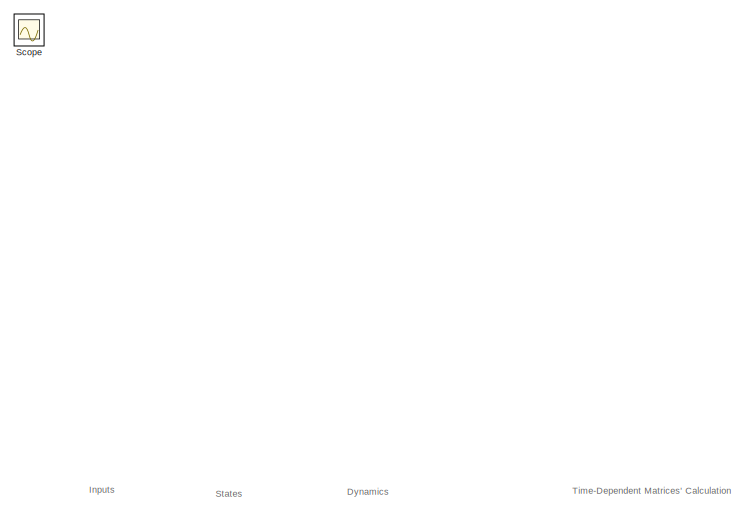
[diagram: root canvas - part 1/2, top left region]
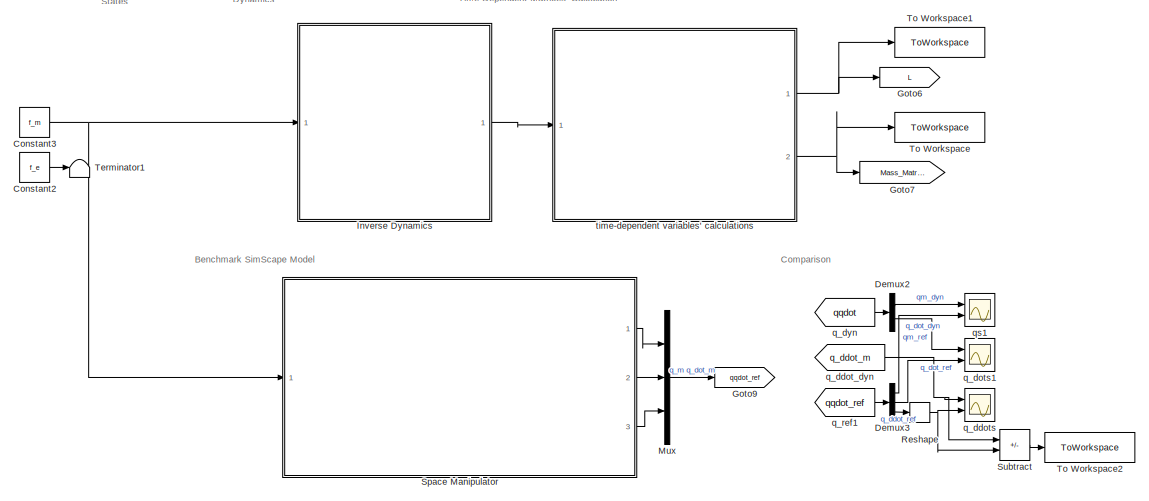
[diagram: root canvas - part 2/2, full width, bottom band]
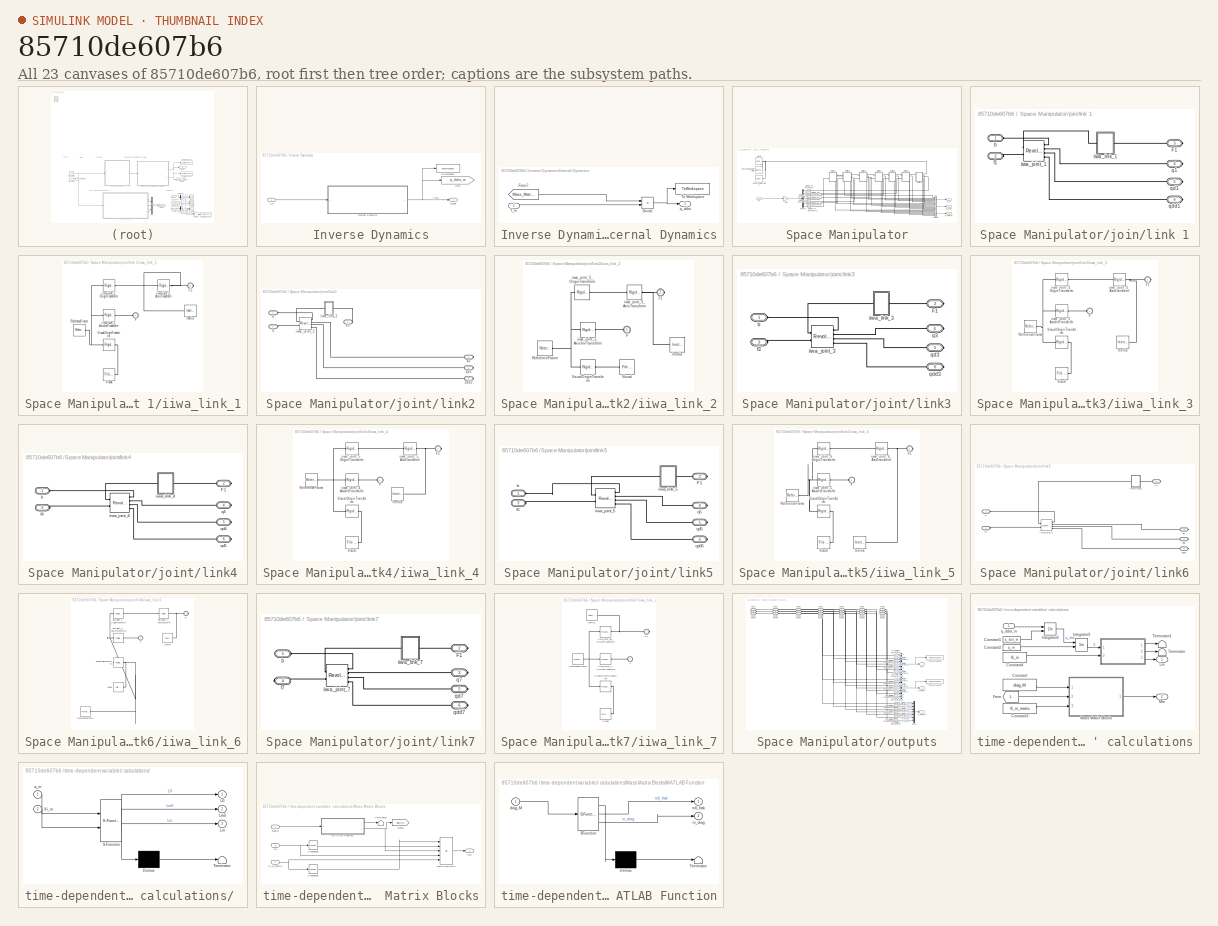
[diagram: thumbnail index - all 23 canvases of the model, root first then tree order]
MODEL slx_85710de607b6
KIND model
CONFIG AbsTol = auto
CONFIG EnableMultiTasking = off
CONFIG FixedStep = 0.01
CONFIG InitFcn = % ************** Initiate forces\n% f0=[0;0;0;0;0;0];\n% f0=[0;0;0;0;0;0;0];\n%f_0=[0;0;0];\n%f_m=[0;0;0;0;0;0;0];\n%f_e=[0;0;0;0;0;0];\n% ************** Initiate states\n%q_m=[0;0];\n%q_dot_m=[0;0.3;0;0;0;0;0];\n%P=[0;0;0];\n%V_I0=[0;0;0];\n% ************** Load main\n%run(Main.m)
CONFIG MaxStep = auto
CONFIG MinStep = auto
CONFIG RelTol = 1e-3
CONFIG SampleTimeConstraint = Unconstrained
CONFIG SolverName = ode4
CONFIG StartTime = 0.0
CONFIG StopTime = 0.01
BLOCK [Constant] Constant2
  Value = f_e
  VectorParams1D = off
BLOCK [Constant] Constant3
  Value = f_m
  VectorParams1D = off
BLOCK [Demux] Demux2
  Outputs = 2
  Ports = [1, 2]
BLOCK [Demux] Demux3
  Outputs = 3
  Ports = [1, 3]
BLOCK [Goto] Goto6
  GotoTag = L
  TagVisibility = global
BLOCK [Goto] Goto7
  GotoTag = Mass_Matrix
  TagVisibility = global
BLOCK [Goto] Goto9
  GotoTag = qqdot_ref
  TagVisibility = global
BLOCK [SubSystem] Inverse Dynamics
  NameLocation = right
  Ports = [1, 1]
  RequestExecContextInheritance = off
BLOCK [Goto] Inverse Dynamics/Goto
  GotoTag = q_ddot_m
  TagVisibility = global
BLOCK [SubSystem] Inverse Dynamics/Internal Dynamics
  Ports = [1, 1]
  RequestExecContextInheritance = off
BLOCK [Product] Inverse Dynamics/Internal Dynamics/Divide
  Inputs = /*
  Multiplication = Matrix(*)
  Ports = [2, 1]
BLOCK [From] Inverse Dynamics/Internal Dynamics/From7
  GotoTag = Mass_Matrix
  TagVisibility = global
BLOCK [ToWorkspace] Inverse Dynamics/Internal Dynamics/To Workspace
  FixptAsFi = on
  MaxDataPoints = inf
  Ports = [1]
  SampleTime = -1
  SaveFormat = Timeseries
  VariableName = qddot
BLOCK [Inport] Inverse Dynamics/Internal Dynamics/f_m
BLOCK [Outport] Inverse Dynamics/Internal Dynamics/q_ddot
BLOCK [ToWorkspace] Inverse Dynamics/To Workspace
  FixptAsFi = on
  MaxDataPoints = inf
  Ports = [1]
  SampleTime = -1
  SaveFormat = Timeseries
  VariableName = q_ddot_m
BLOCK [Inport] Inverse Dynamics/f_m
BLOCK [Outport] Inverse Dynamics/q_ddot
BLOCK [Mux] Mux
  DisplayOption = bar
  Inputs = 3
  Ports = [3, 1]
BLOCK [Reshape] Reshape
  OutputDimensionality = Column vector (2-D)
  Ports = [1, 1]
BLOCK [Scope] Scope
  Floating = off
  IOType = viewer
  NumInputPorts = 1
  Ports = []
  ScopeSpecificationString = Simulink.scopes.TimeScopeBlockCfg('CurrentConfiguration', extmgr.ConfigurationSet(extmgr.Configuration('Core','General UI',true),extmgr.Configuration('Core','Source UI',true),extmgr.Configuration('Sources','WiredSimulink',true),extmgr.Configuration('Visuals','Time Domain',true,'SerializedDisplays',{struct('MinYLimReal','-10','MaxYLimReal','10','YLabelReal','','MinYLimMag','0','MaxYLimMag','10','Le...<+777ch>
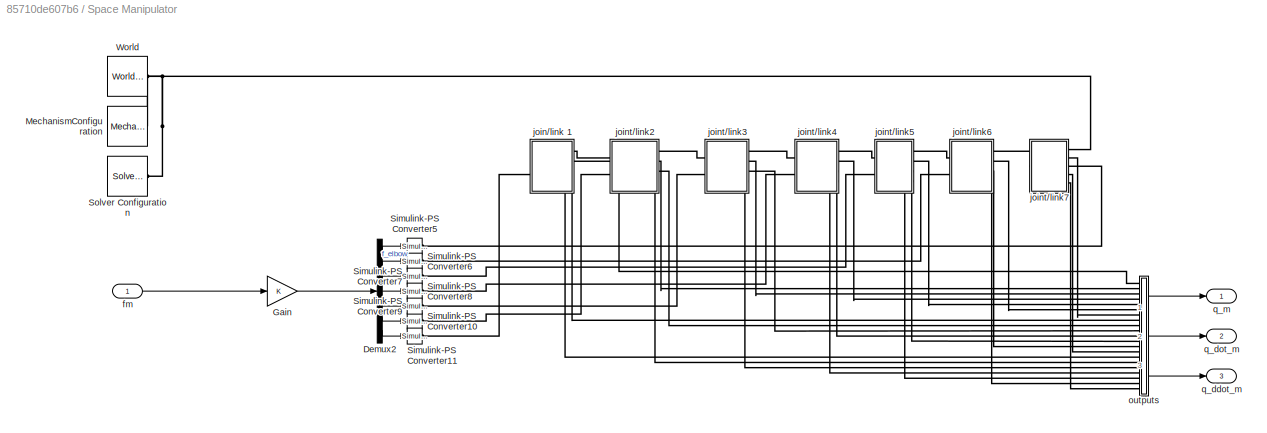
BLOCK [SubSystem] Space Manipulator
  Ports = [1, 3]
  RequestExecContextInheritance = off
BLOCK [Demux] Space Manipulator/Demux2
  Outputs = 7
  Ports = [1, 7]
BLOCK [Gain] Space Manipulator/Gain
BLOCK [Reference] Space Manipulator/MechanismConfiguration  REF=sm_lib/Utilities/Mechanism
Configuration
  Ports = [0, 0, 0, 0, 0, 0, 1]
  SourceBlock = sm_lib/Utilities/Mechanism\nConfiguration
  SourceProductBaseCode = MS
  SourceType = Mechanism\nConfiguration
BLOCK [Reference] Space Manipulator/Simulink-PS Converter10  REF=nesl_utility/Simulink-PS
Converter
  Ports = [1, 0, 0, 0, 0, 0, 1]
  SourceBlock = nesl_utility/Simulink-PS\nConverter
  SourceProductBaseCode = PW,SS
  SourceType = Simulink-PS\nConverter
BLOCK [Reference] Space Manipulator/Simulink-PS Converter11  REF=nesl_utility/Simulink-PS
Converter
  Ports = [1, 0, 0, 0, 0, 0, 1]
  SourceBlock = nesl_utility/Simulink-PS\nConverter
  SourceProductBaseCode = PW,SS
  SourceType = Simulink-PS\nConverter
BLOCK [Reference] Space Manipulator/Simulink-PS Converter5  REF=nesl_utility/Simulink-PS
Converter
  Ports = [1, 0, 0, 0, 0, 0, 1]
  SourceBlock = nesl_utility/Simulink-PS\nConverter
  SourceProductBaseCode = PW,SS
  SourceType = Simulink-PS\nConverter
BLOCK [Reference] Space Manipulator/Simulink-PS Converter6  REF=nesl_utility/Simulink-PS
Converter
  Ports = [1, 0, 0, 0, 0, 0, 1]
  SourceBlock = nesl_utility/Simulink-PS\nConverter
  SourceProductBaseCode = PW,SS
  SourceType = Simulink-PS\nConverter
BLOCK [Reference] Space Manipulator/Simulink-PS Converter7  REF=nesl_utility/Simulink-PS
Converter
  Ports = [1, 0, 0, 0, 0, 0, 1]
  SourceBlock = nesl_utility/Simulink-PS\nConverter
  SourceProductBaseCode = PW,SS
  SourceType = Simulink-PS\nConverter
BLOCK [Reference] Space Manipulator/Simulink-PS Converter8  REF=nesl_utility/Simulink-PS
Converter
  Ports = [1, 0, 0, 0, 0, 0, 1]
  SourceBlock = nesl_utility/Simulink-PS\nConverter
  SourceProductBaseCode = PW,SS
  SourceType = Simulink-PS\nConverter
BLOCK [Reference] Space Manipulator/Simulink-PS Converter9  REF=nesl_utility/Simulink-PS
Converter
  Ports = [1, 0, 0, 0, 0, 0, 1]
  SourceBlock = nesl_utility/Simulink-PS\nConverter
  SourceProductBaseCode = PW,SS
  SourceType = Simulink-PS\nConverter
BLOCK [Reference] Space Manipulator/Solver Configuration  REF=nesl_utility/Solver
Configuration
  Ports = [0, 0, 0, 0, 0, 0, 1]
  SourceBlock = nesl_utility/Solver\nConfiguration
  SourceProductBaseCode = PW,SS
  SourceType = Solver\nConfiguration
BLOCK [Reference] Space Manipulator/World  REF=sm_lib/Frames and
Transforms/World Frame
  Ports = [0, 0, 0, 0, 0, 0, 1]
  SourceBlock = sm_lib/Frames and\nTransforms/World Frame
  SourceProductBaseCode = MS
  SourceType = World Frame
BLOCK [Inport] Space Manipulator/fm
BLOCK [SubSystem] Space Manipulator/join//link 1
  Ports = [0, 0, 0, 0, 0, 2, 4]
  RequestExecContextInheritance = off
BLOCK [PMIOPort] Space Manipulator/join//link 1/F1
  Port = 3
  Side = Right
BLOCK [PMIOPort] Space Manipulator/join//link 1/b
  Side = Left
BLOCK [PMIOPort] Space Manipulator/join//link 1/f1
  Port = 2
  Side = Left
BLOCK [Reference] Space Manipulator/join//link 1/iiwa_joint_1  REF=sm_lib/Joints/Revolute Joint
  Ports = [0, 0, 0, 0, 0, 2, 4]
  SourceBlock = sm_lib/Joints/Revolute Joint
  SourceProductBaseCode = MS
  SourceType = Revolute Joint
BLOCK [SubSystem] Space Manipulator/join//link 1/iiwa_link_1
  Ports = [0, 0, 0, 0, 0, 1, 1]
  RequestExecContextInheritance = off
BLOCK [PMIOPort] Space Manipulator/join//link 1/iiwa_link_1/F
  Side = Left
BLOCK [PMIOPort] Space Manipulator/join//link 1/iiwa_link_1/F1
  Port = 2
  Side = Right
BLOCK [Reference] Space Manipulator/join//link 1/iiwa_link_1/Inertia  REF=sm_lib/Body Elements/Inertia
  NameLocation = top
  Ports = [0, 0, 0, 0, 0, 0, 1]
  SourceBlock = sm_lib/Body Elements/Inertia
  SourceProductBaseCode = MS
  SourceType = Inertia
BLOCK [Reference] Space Manipulator/join//link 1/iiwa_link_1/ReferenceFrame  REF=sm_lib/Frames and
Transforms/Reference
Frame
  Ports = [0, 0, 0, 0, 0, 0, 1]
  SourceBlock = sm_lib/Frames and\nTransforms/Reference\nFrame
  SourceProductBaseCode = MS
  SourceType = Reference\nFrame
BLOCK [Reference] Space Manipulator/join//link 1/iiwa_link_1/Visual  REF=sm_lib/Body Elements/File Solid
  Ports = [0, 0, 0, 0, 0, 0, 1]
  SourceBlock = sm_lib/Body Elements/File Solid
  SourceProductBaseCode = MS
  SourceType = File Solid
BLOCK [Reference] Space Manipulator/join//link 1/iiwa_link_1/VisualOriginTransform  REF=sm_lib/Frames and
Transforms/Rigid
Transform
  Ports = [0, 0, 0, 0, 0, 1, 1]
  SourceBlock = sm_lib/Frames and\nTransforms/Rigid\nTransform
  SourceProductBaseCode = MS
  SourceType = Rigid\nTransform
BLOCK [Reference] Space Manipulator/join//link 1/iiwa_link_1/iiwa_joint_1_AxisInvTransform  REF=sm_lib/Frames and
Transforms/Rigid
Transform
  Ports = [0, 0, 0, 0, 0, 1, 1]
  SourceBlock = sm_lib/Frames and\nTransforms/Rigid\nTransform
  SourceProductBaseCode = MS
  SourceType = Rigid\nTransform
BLOCK [Reference] Space Manipulator/join//link 1/iiwa_link_1/iiwa_joint_2_AxisTransform  REF=sm_lib/Frames and
Transforms/Rigid
Transform
  Ports = [0, 0, 0, 0, 0, 1, 1]
  SourceBlock = sm_lib/Frames and\nTransforms/Rigid\nTransform
  SourceProductBaseCode = MS
  SourceType = Rigid\nTransform
BLOCK [Reference] Space Manipulator/join//link 1/iiwa_link_1/iiwa_joint_2_OriginTransform  REF=sm_lib/Frames and
Transforms/Rigid
Transform
  Ports = [0, 0, 0, 0, 0, 1, 1]
  SourceBlock = sm_lib/Frames and\nTransforms/Rigid\nTransform
  SourceProductBaseCode = MS
  SourceType = Rigid\nTransform
BLOCK [PMIOPort] Space Manipulator/join//link 1/q1
  Port = 4
  Side = Right
BLOCK [PMIOPort] Space Manipulator/join//link 1/qd1
  Port = 5
  Side = Right
BLOCK [PMIOPort] Space Manipulator/join//link 1/qdd1
  Port = 6
  Side = Right
BLOCK [SubSystem] Space Manipulator/joint//link2
  Ports = [0, 0, 0, 0, 0, 2, 4]
  RequestExecContextInheritance = off
BLOCK [PMIOPort] Space Manipulator/joint//link2/F1
  Port = 2
  Side = Right
BLOCK [PMIOPort] Space Manipulator/joint//link2/b
  Side = Left
BLOCK [PMIOPort] Space Manipulator/joint//link2/f2
  Port = 3
  Side = Left
BLOCK [Reference] Space Manipulator/joint//link2/iiwa_joint_2  REF=sm_lib/Joints/Revolute Joint
  Ports = [0, 0, 0, 0, 0, 2, 4]
  SourceBlock = sm_lib/Joints/Revolute Joint
  SourceProductBaseCode = MS
  SourceType = Revolute Joint
BLOCK [SubSystem] Space Manipulator/joint//link2/iiwa_link_2
  Ports = [0, 0, 0, 0, 0, 1, 1]
  RequestExecContextInheritance = off
BLOCK [PMIOPort] Space Manipulator/joint//link2/iiwa_link_2/F
  Side = Left
BLOCK [PMIOPort] Space Manipulator/joint//link2/iiwa_link_2/F1
  Port = 2
  Side = Right
BLOCK [Reference] Space Manipulator/joint//link2/iiwa_link_2/Inertia  REF=sm_lib/Body Elements/Inertia
  NameLocation = top
  Ports = [0, 0, 0, 0, 0, 0, 1]
  SourceBlock = sm_lib/Body Elements/Inertia
  SourceProductBaseCode = MS
  SourceType = Inertia
BLOCK [Reference] Space Manipulator/joint//link2/iiwa_link_2/ReferenceFrame  REF=sm_lib/Frames and
Transforms/Reference
Frame
  Ports = [0, 0, 0, 0, 0, 0, 1]
  SourceBlock = sm_lib/Frames and\nTransforms/Reference\nFrame
  SourceProductBaseCode = MS
  SourceType = Reference\nFrame
BLOCK [Reference] Space Manipulator/joint//link2/iiwa_link_2/Visual  REF=sm_lib/Body Elements/File Solid
  NameLocation = top
  Ports = [0, 0, 0, 0, 0, 0, 1]
  SourceBlock = sm_lib/Body Elements/File Solid
  SourceProductBaseCode = MS
  SourceType = File Solid
BLOCK [Reference] Space Manipulator/joint//link2/iiwa_link_2/VisualOriginTransform  REF=sm_lib/Frames and
Transforms/Rigid
Transform
  Ports = [0, 0, 0, 0, 0, 1, 1]
  SourceBlock = sm_lib/Frames and\nTransforms/Rigid\nTransform
  SourceProductBaseCode = MS
  SourceType = Rigid\nTransform
BLOCK [Reference] Space Manipulator/joint//link2/iiwa_link_2/iiwa_joint_2_AxisInvTransform  REF=sm_lib/Frames and
Transforms/Rigid
Transform
  Ports = [0, 0, 0, 0, 0, 1, 1]
  SourceBlock = sm_lib/Frames and\nTransforms/Rigid\nTransform
  SourceProductBaseCode = MS
  SourceType = Rigid\nTransform
BLOCK [Reference] Space Manipulator/joint//link2/iiwa_link_2/iiwa_joint_3_AxisTransform  REF=sm_lib/Frames and
Transforms/Rigid
Transform
  Ports = [0, 0, 0, 0, 0, 1, 1]
  SourceBlock = sm_lib/Frames and\nTransforms/Rigid\nTransform
  SourceProductBaseCode = MS
  SourceType = Rigid\nTransform
BLOCK [Reference] Space Manipulator/joint//link2/iiwa_link_2/iiwa_joint_3_OriginTransform  REF=sm_lib/Frames and
Transforms/Rigid
Transform
  Ports = [0, 0, 0, 0, 0, 1, 1]
  SourceBlock = sm_lib/Frames and\nTransforms/Rigid\nTransform
  SourceProductBaseCode = MS
  SourceType = Rigid\nTransform
BLOCK [PMIOPort] Space Manipulator/joint//link2/q2
  Port = 4
  Side = Right
BLOCK [PMIOPort] Space Manipulator/joint//link2/qd2
  Port = 5
  Side = Right
BLOCK [PMIOPort] Space Manipulator/joint//link2/qdd2
  Port = 6
  Side = Right
BLOCK [SubSystem] Space Manipulator/joint//link3
  Ports = [0, 0, 0, 0, 0, 2, 4]
  RequestExecContextInheritance = off
BLOCK [PMIOPort] Space Manipulator/joint//link3/F1
  Port = 2
  Side = Right
BLOCK [PMIOPort] Space Manipulator/joint//link3/b
  Side = Left
BLOCK [PMIOPort] Space Manipulator/joint//link3/f3
  Port = 3
  Side = Left
BLOCK [Reference] Space Manipulator/joint//link3/iiwa_joint_3  REF=sm_lib/Joints/Revolute Joint
  Ports = [0, 0, 0, 0, 0, 2, 4]
  SourceBlock = sm_lib/Joints/Revolute Joint
  SourceProductBaseCode = MS
  SourceType = Revolute Joint
BLOCK [SubSystem] Space Manipulator/joint//link3/iiwa_link_3
  Ports = [0, 0, 0, 0, 0, 1, 1]
  RequestExecContextInheritance = off
BLOCK [PMIOPort] Space Manipulator/joint//link3/iiwa_link_3/F
  Side = Left
BLOCK [PMIOPort] Space Manipulator/joint//link3/iiwa_link_3/F1
  Port = 2
  Side = Right
BLOCK [Reference] Space Manipulator/joint//link3/iiwa_link_3/Inertia  REF=sm_lib/Body Elements/Inertia
  Ports = [0, 0, 0, 0, 0, 0, 1]
  SourceBlock = sm_lib/Body Elements/Inertia
  SourceProductBaseCode = MS
  SourceType = Inertia
BLOCK [Reference] Space Manipulator/joint//link3/iiwa_link_3/ReferenceFrame  REF=sm_lib/Frames and
Transforms/Reference
Frame
  Ports = [0, 0, 0, 0, 0, 0, 1]
  SourceBlock = sm_lib/Frames and\nTransforms/Reference\nFrame
  SourceProductBaseCode = MS
  SourceType = Reference\nFrame
BLOCK [Reference] Space Manipulator/joint//link3/iiwa_link_3/Visual  REF=sm_lib/Body Elements/File Solid
  Ports = [0, 0, 0, 0, 0, 0, 1]
  SourceBlock = sm_lib/Body Elements/File Solid
  SourceProductBaseCode = MS
  SourceType = File Solid
BLOCK [Reference] Space Manipulator/joint//link3/iiwa_link_3/VisualOriginTransform  REF=sm_lib/Frames and
Transforms/Rigid
Transform
  Ports = [0, 0, 0, 0, 0, 1, 1]
  SourceBlock = sm_lib/Frames and\nTransforms/Rigid\nTransform
  SourceProductBaseCode = MS
  SourceType = Rigid\nTransform
BLOCK [Reference] Space Manipulator/joint//link3/iiwa_link_3/iiwa_joint_3_AxisInvTransform  REF=sm_lib/Frames and
Transforms/Rigid
Transform
  Ports = [0, 0, 0, 0, 0, 1, 1]
  SourceBlock = sm_lib/Frames and\nTransforms/Rigid\nTransform
  SourceProductBaseCode = MS
  SourceType = Rigid\nTransform
BLOCK [Reference] Space Manipulator/joint//link3/iiwa_link_3/iiwa_joint_4_AxisTransform  REF=sm_lib/Frames and
Transforms/Rigid
Transform
  Ports = [0, 0, 0, 0, 0, 1, 1]
  SourceBlock = sm_lib/Frames and\nTransforms/Rigid\nTransform
  SourceProductBaseCode = MS
  SourceType = Rigid\nTransform
BLOCK [Reference] Space Manipulator/joint//link3/iiwa_link_3/iiwa_joint_4_OriginTransform  REF=sm_lib/Frames and
Transforms/Rigid
Transform
  Ports = [0, 0, 0, 0, 0, 1, 1]
  SourceBlock = sm_lib/Frames and\nTransforms/Rigid\nTransform
  SourceProductBaseCode = MS
  SourceType = Rigid\nTransform
BLOCK [PMIOPort] Space Manipulator/joint//link3/q3
  Port = 4
  Side = Right
BLOCK [PMIOPort] Space Manipulator/joint//link3/qd3
  Port = 5
  Side = Right
BLOCK [PMIOPort] Space Manipulator/joint//link3/qdd3
  Port = 6
  Side = Right
BLOCK [SubSystem] Space Manipulator/joint//link4
  Ports = [0, 0, 0, 0, 0, 2, 4]
  RequestExecContextInheritance = off
BLOCK [PMIOPort] Space Manipulator/joint//link4/F1
  Port = 2
  Side = Right
BLOCK [PMIOPort] Space Manipulator/joint//link4/b
  Side = Left
BLOCK [PMIOPort] Space Manipulator/joint//link4/f4
  Port = 3
  Side = Left
BLOCK [Reference] Space Manipulator/joint//link4/iiwa_joint_4  REF=sm_lib/Joints/Revolute Joint
  Ports = [0, 0, 0, 0, 0, 2, 4]
  SourceBlock = sm_lib/Joints/Revolute Joint
  SourceProductBaseCode = MS
  SourceType = Revolute Joint
BLOCK [SubSystem] Space Manipulator/joint//link4/iiwa_link_4
  Ports = [0, 0, 0, 0, 0, 1, 1]
  RequestExecContextInheritance = off
BLOCK [PMIOPort] Space Manipulator/joint//link4/iiwa_link_4/F
  Side = Left
BLOCK [PMIOPort] Space Manipulator/joint//link4/iiwa_link_4/F1
  Port = 2
  Side = Right
BLOCK [Reference] Space Manipulator/joint//link4/iiwa_link_4/Inertia  REF=sm_lib/Body Elements/Inertia
  Ports = [0, 0, 0, 0, 0, 0, 1]
  SourceBlock = sm_lib/Body Elements/Inertia
  SourceProductBaseCode = MS
  SourceType = Inertia
BLOCK [Reference] Space Manipulator/joint//link4/iiwa_link_4/ReferenceFrame  REF=sm_lib/Frames and
Transforms/Reference
Frame
  Ports = [0, 0, 0, 0, 0, 0, 1]
  SourceBlock = sm_lib/Frames and\nTransforms/Reference\nFrame
  SourceProductBaseCode = MS
  SourceType = Reference\nFrame
BLOCK [Reference] Space Manipulator/joint//link4/iiwa_link_4/Visual  REF=sm_lib/Body Elements/File Solid
  Ports = [0, 0, 0, 0, 0, 0, 1]
  SourceBlock = sm_lib/Body Elements/File Solid
  SourceProductBaseCode = MS
  SourceType = File Solid
BLOCK [Reference] Space Manipulator/joint//link4/iiwa_link_4/VisualOriginTransform  REF=sm_lib/Frames and
Transforms/Rigid
Transform
  Ports = [0, 0, 0, 0, 0, 1, 1]
  SourceBlock = sm_lib/Frames and\nTransforms/Rigid\nTransform
  SourceProductBaseCode = MS
  SourceType = Rigid\nTransform
BLOCK [Reference] Space Manipulator/joint//link4/iiwa_link_4/iiwa_joint_4_AxisInvTransform  REF=sm_lib/Frames and
Transforms/Rigid
Transform
  Ports = [0, 0, 0, 0, 0, 1, 1]
  SourceBlock = sm_lib/Frames and\nTransforms/Rigid\nTransform
  SourceProductBaseCode = MS
  SourceType = Rigid\nTransform
BLOCK [Reference] Space Manipulator/joint//link4/iiwa_link_4/iiwa_joint_5_AxisTransform  REF=sm_lib/Frames and
Transforms/Rigid
Transform
  Ports = [0, 0, 0, 0, 0, 1, 1]
  SourceBlock = sm_lib/Frames and\nTransforms/Rigid\nTransform
  SourceProductBaseCode = MS
  SourceType = Rigid\nTransform
BLOCK [Reference] Space Manipulator/joint//link4/iiwa_link_4/iiwa_joint_5_OriginTransform  REF=sm_lib/Frames and
Transforms/Rigid
Transform
  Ports = [0, 0, 0, 0, 0, 1, 1]
  SourceBlock = sm_lib/Frames and\nTransforms/Rigid\nTransform
  SourceProductBaseCode = MS
  SourceType = Rigid\nTransform
BLOCK [PMIOPort] Space Manipulator/joint//link4/q4
  Port = 4
  Side = Right
BLOCK [PMIOPort] Space Manipulator/joint//link4/qd4
  Port = 5
  Side = Right
BLOCK [PMIOPort] Space Manipulator/joint//link4/qd5
  Port = 6
  Side = Right
BLOCK [SubSystem] Space Manipulator/joint//link5
  Ports = [0, 0, 0, 0, 0, 2, 4]
  RequestExecContextInheritance = off
BLOCK [PMIOPort] Space Manipulator/joint//link5/F1
  Port = 2
  Side = Right
BLOCK [PMIOPort] Space Manipulator/joint//link5/b
  Side = Left
BLOCK [PMIOPort] Space Manipulator/joint//link5/f5
  Port = 3
  Side = Left
BLOCK [Reference] Space Manipulator/joint//link5/iiwa_joint_5  REF=sm_lib/Joints/Revolute Joint
  Ports = [0, 0, 0, 0, 0, 2, 4]
  SourceBlock = sm_lib/Joints/Revolute Joint
  SourceProductBaseCode = MS
  SourceType = Revolute Joint
BLOCK [SubSystem] Space Manipulator/joint//link5/iiwa_link_5
  Ports = [0, 0, 0, 0, 0, 1, 1]
  RequestExecContextInheritance = off
BLOCK [PMIOPort] Space Manipulator/joint//link5/iiwa_link_5/F
  Side = Left
BLOCK [PMIOPort] Space Manipulator/joint//link5/iiwa_link_5/F1
  Port = 2
  Side = Right
BLOCK [Reference] Space Manipulator/joint//link5/iiwa_link_5/Inertia  REF=sm_lib/Body Elements/Inertia
  Ports = [0, 0, 0, 0, 0, 0, 1]
  SourceBlock = sm_lib/Body Elements/Inertia
  SourceProductBaseCode = MS
  SourceType = Inertia
BLOCK [Reference] Space Manipulator/joint//link5/iiwa_link_5/ReferenceFrame  REF=sm_lib/Frames and
Transforms/Reference
Frame
  Ports = [0, 0, 0, 0, 0, 0, 1]
  SourceBlock = sm_lib/Frames and\nTransforms/Reference\nFrame
  SourceProductBaseCode = MS
  SourceType = Reference\nFrame
BLOCK [Reference] Space Manipulator/joint//link5/iiwa_link_5/Visual  REF=sm_lib/Body Elements/File Solid
  Ports = [0, 0, 0, 0, 0, 0, 1]
  SourceBlock = sm_lib/Body Elements/File Solid
  SourceProductBaseCode = MS
  SourceType = File Solid
BLOCK [Reference] Space Manipulator/joint//link5/iiwa_link_5/VisualOriginTransform  REF=sm_lib/Frames and
Transforms/Rigid
Transform
  Ports = [0, 0, 0, 0, 0, 1, 1]
  SourceBlock = sm_lib/Frames and\nTransforms/Rigid\nTransform
  SourceProductBaseCode = MS
  SourceType = Rigid\nTransform
BLOCK [Reference] Space Manipulator/joint//link5/iiwa_link_5/iiwa_joint_5_AxisInvTransform  REF=sm_lib/Frames and
Transforms/Rigid
Transform
  Ports = [0, 0, 0, 0, 0, 1, 1]
  SourceBlock = sm_lib/Frames and\nTransforms/Rigid\nTransform
  SourceProductBaseCode = MS
  SourceType = Rigid\nTransform
BLOCK [Reference] Space Manipulator/joint//link5/iiwa_link_5/iiwa_joint_6_AxisTransform  REF=sm_lib/Frames and
Transforms/Rigid
Transform
  Ports = [0, 0, 0, 0, 0, 1, 1]
  SourceBlock = sm_lib/Frames and\nTransforms/Rigid\nTransform
  SourceProductBaseCode = MS
  SourceType = Rigid\nTransform
BLOCK [Reference] Space Manipulator/joint//link5/iiwa_link_5/iiwa_joint_6_OriginTransform  REF=sm_lib/Frames and
Transforms/Rigid
Transform
  Ports = [0, 0, 0, 0, 0, 1, 1]
  SourceBlock = sm_lib/Frames and\nTransforms/Rigid\nTransform
  SourceProductBaseCode = MS
  SourceType = Rigid\nTransform
BLOCK [PMIOPort] Space Manipulator/joint//link5/q5
  Port = 4
  Side = Right
BLOCK [PMIOPort] Space Manipulator/joint//link5/qd5
  Port = 5
  Side = Right
BLOCK [PMIOPort] Space Manipulator/joint//link5/qdd5
  Port = 6
  Side = Right
BLOCK [SubSystem] Space Manipulator/joint//link6
  Ports = [0, 0, 0, 0, 0, 2, 4]
  RequestExecContextInheritance = off
BLOCK [PMIOPort] Space Manipulator/joint//link6/F1
  Port = 2
  Side = Right
BLOCK [PMIOPort] Space Manipulator/joint//link6/b
  Side = Left
BLOCK [PMIOPort] Space Manipulator/joint//link6/f6
  Port = 4
  Side = Left
BLOCK [Reference] Space Manipulator/joint//link6/iiwa_joint_6  REF=sm_lib/Joints/Revolute Joint
  Ports = [0, 0, 0, 0, 0, 2, 4]
  SourceBlock = sm_lib/Joints/Revolute Joint
  SourceProductBaseCode = MS
  SourceType = Revolute Joint
BLOCK [SubSystem] Space Manipulator/joint//link6/iiwa_link_6
  Ports = [0, 0, 0, 0, 0, 1, 1]
  RequestExecContextInheritance = off
BLOCK [PMIOPort] Space Manipulator/joint//link6/iiwa_link_6/F
  Side = Left
BLOCK [PMIOPort] Space Manipulator/joint//link6/iiwa_link_6/F1
  Port = 2
  Side = Right
BLOCK [Reference] Space Manipulator/joint//link6/iiwa_link_6/Inertia  REF=sm_lib/Body Elements/Inertia
  Ports = [0, 0, 0, 0, 0, 0, 1]
  SourceBlock = sm_lib/Body Elements/Inertia
  SourceProductBaseCode = MS
  SourceType = Inertia
BLOCK [Reference] Space Manipulator/joint//link6/iiwa_link_6/ReferenceFrame  REF=sm_lib/Frames and
Transforms/Reference
Frame
  Ports = [0, 0, 0, 0, 0, 0, 1]
  SourceBlock = sm_lib/Frames and\nTransforms/Reference\nFrame
  SourceProductBaseCode = MS
  SourceType = Reference\nFrame
BLOCK [Reference] Space Manipulator/joint//link6/iiwa_link_6/Visual  REF=sm_lib/Body Elements/File Solid
  Ports = [0, 0, 0, 0, 0, 0, 1]
  SourceBlock = sm_lib/Body Elements/File Solid
  SourceProductBaseCode = MS
  SourceType = File Solid
BLOCK [Reference] Space Manipulator/joint//link6/iiwa_link_6/VisualOriginTransform  REF=sm_lib/Frames and
Transforms/Rigid
Transform
  Ports = [0, 0, 0, 0, 0, 1, 1]
  SourceBlock = sm_lib/Frames and\nTransforms/Rigid\nTransform
  SourceProductBaseCode = MS
  SourceType = Rigid\nTransform
BLOCK [Reference] Space Manipulator/joint//link6/iiwa_link_6/iiwa_joint_6_AxisInvTransform  REF=sm_lib/Frames and
Transforms/Rigid
Transform
  Ports = [0, 0, 0, 0, 0, 1, 1]
  SourceBlock = sm_lib/Frames and\nTransforms/Rigid\nTransform
  SourceProductBaseCode = MS
  SourceType = Rigid\nTransform
BLOCK [Reference] Space Manipulator/joint//link6/iiwa_link_6/iiwa_joint_7_AxisTransform  REF=sm_lib/Frames and
Transforms/Rigid
Transform
  Ports = [0, 0, 0, 0, 0, 1, 1]
  SourceBlock = sm_lib/Frames and\nTransforms/Rigid\nTransform
  SourceProductBaseCode = MS
  SourceType = Rigid\nTransform
BLOCK [Reference] Space Manipulator/joint//link6/iiwa_link_6/iiwa_joint_7_OriginTransform  REF=sm_lib/Frames and
Transforms/Rigid
Transform
  Ports = [0, 0, 0, 0, 0, 1, 1]
  SourceBlock = sm_lib/Frames and\nTransforms/Rigid\nTransform
  SourceProductBaseCode = MS
  SourceType = Rigid\nTransform
BLOCK [PMIOPort] Space Manipulator/joint//link6/q6
  Port = 3
  Side = Right
BLOCK [PMIOPort] Space Manipulator/joint//link6/qd6
  Port = 5
  Side = Right
BLOCK [PMIOPort] Space Manipulator/joint//link6/qdd6
  Port = 6
  Side = Right
BLOCK [SubSystem] Space Manipulator/joint//link7
  Ports = [0, 0, 0, 0, 0, 1, 5]
  RequestExecContextInheritance = off
BLOCK [PMIOPort] Space Manipulator/joint//link7/F1
  Port = 2
  Side = Right
BLOCK [PMIOPort] Space Manipulator/joint//link7/b
  Side = Left
BLOCK [PMIOPort] Space Manipulator/joint//link7/f7
  Port = 4
  Side = Right
BLOCK [Reference] Space Manipulator/joint//link7/iiwa_joint_7  REF=sm_lib/Joints/Revolute Joint
  Ports = [0, 0, 0, 0, 0, 2, 4]
  SourceBlock = sm_lib/Joints/Revolute Joint
  SourceProductBaseCode = MS
  SourceType = Revolute Joint
BLOCK [SubSystem] Space Manipulator/joint//link7/iiwa_link_7
  Ports = [0, 0, 0, 0, 0, 1, 1]
  RequestExecContextInheritance = off
BLOCK [PMIOPort] Space Manipulator/joint//link7/iiwa_link_7/F
  Side = Left
BLOCK [PMIOPort] Space Manipulator/joint//link7/iiwa_link_7/F1
  Port = 2
  Side = Right
BLOCK [Reference] Space Manipulator/joint//link7/iiwa_link_7/Inertia  REF=sm_lib/Body Elements/Inertia
  Ports = [0, 0, 0, 0, 0, 0, 1]
  SourceBlock = sm_lib/Body Elements/Inertia
  SourceProductBaseCode = MS
  SourceType = Inertia
BLOCK [Reference] Space Manipulator/joint//link7/iiwa_link_7/ReferenceFrame  REF=sm_lib/Frames and
Transforms/Reference
Frame
  Ports = [0, 0, 0, 0, 0, 0, 1]
  SourceBlock = sm_lib/Frames and\nTransforms/Reference\nFrame
  SourceProductBaseCode = MS
  SourceType = Reference\nFrame
BLOCK [Reference] Space Manipulator/joint//link7/iiwa_link_7/Visual  REF=sm_lib/Body Elements/File Solid
  Ports = [0, 0, 0, 0, 0, 0, 1]
  SourceBlock = sm_lib/Body Elements/File Solid
  SourceProductBaseCode = MS
  SourceType = File Solid
BLOCK [Reference] Space Manipulator/joint//link7/iiwa_link_7/VisualOriginTransform  REF=sm_lib/Frames and
Transforms/Rigid
Transform
  Ports = [0, 0, 0, 0, 0, 1, 1]
  SourceBlock = sm_lib/Frames and\nTransforms/Rigid\nTransform
  SourceProductBaseCode = MS
  SourceType = Rigid\nTransform
BLOCK [Reference] Space Manipulator/joint//link7/iiwa_link_7/iiwa_joint_7_AxisInvTransform  REF=sm_lib/Frames and
Transforms/Rigid
Transform
  Ports = [0, 0, 0, 0, 0, 1, 1]
  SourceBlock = sm_lib/Frames and\nTransforms/Rigid\nTransform
  SourceProductBaseCode = MS
  SourceType = Rigid\nTransform
BLOCK [Reference] Space Manipulator/joint//link7/iiwa_link_7/iiwa_joint_ee_OriginTransform  REF=sm_lib/Frames and
Transforms/Rigid
Transform
  Ports = [0, 0, 0, 0, 0, 1, 1]
  SourceBlock = sm_lib/Frames and\nTransforms/Rigid\nTransform
  SourceProductBaseCode = MS
  SourceType = Rigid\nTransform
BLOCK [PMIOPort] Space Manipulator/joint//link7/q7
  Port = 3
  Side = Right
BLOCK [PMIOPort] Space Manipulator/joint//link7/qd7
  Port = 5
  Side = Right
BLOCK [PMIOPort] Space Manipulator/joint//link7/qdd7
  Port = 6
  Side = Right
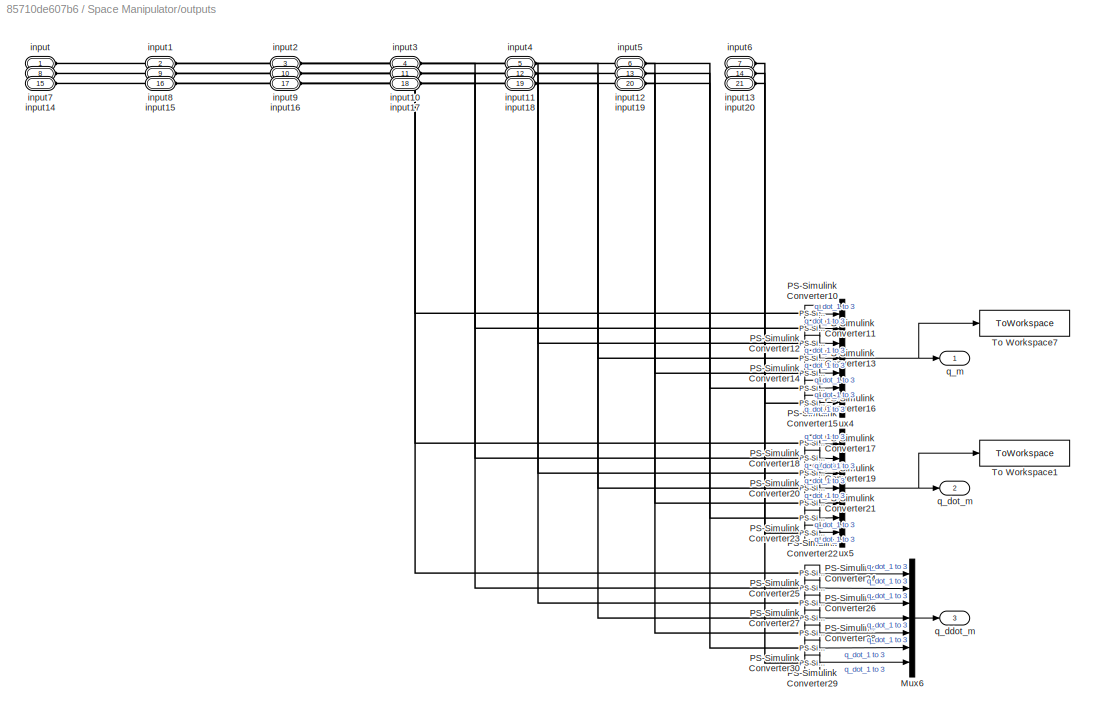
BLOCK [SubSystem] Space Manipulator/outputs
  Ports = [0, 3, 0, 0, 0, 21]
  RequestExecContextInheritance = off
BLOCK [Mux] Space Manipulator/outputs/Mux4
  DisplayOption = bar
  Inputs = 7
  Ports = [7, 1]
BLOCK [Mux] Space Manipulator/outputs/Mux5
  DisplayOption = bar
  Inputs = 7
  Ports = [7, 1]
BLOCK [Mux] Space Manipulator/outputs/Mux6
  DisplayOption = bar
  Inputs = 7
  Ports = [7, 1]
BLOCK [Reference] Space Manipulator/outputs/PS-Simulink Converter10  REF=nesl_utility/PS-Simulink
Converter
  Ports = [0, 1, 0, 0, 0, 1]
  SourceBlock = nesl_utility/PS-Simulink\nConverter
  SourceProductBaseCode = PW,SS
  SourceType = PS-Simulink\nConverter
BLOCK [Reference] Space Manipulator/outputs/PS-Simulink Converter11  REF=nesl_utility/PS-Simulink
Converter
  Ports = [0, 1, 0, 0, 0, 1]
  SourceBlock = nesl_utility/PS-Simulink\nConverter
  SourceProductBaseCode = PW,SS
  SourceType = PS-Simulink\nConverter
BLOCK [Reference] Space Manipulator/outputs/PS-Simulink Converter12  REF=nesl_utility/PS-Simulink
Converter
  Ports = [0, 1, 0, 0, 0, 1]
  SourceBlock = nesl_utility/PS-Simulink\nConverter
  SourceProductBaseCode = PW,SS
  SourceType = PS-Simulink\nConverter
BLOCK [Reference] Space Manipulator/outputs/PS-Simulink Converter13  REF=nesl_utility/PS-Simulink
Converter
  Ports = [0, 1, 0, 0, 0, 1]
  SourceBlock = nesl_utility/PS-Simulink\nConverter
  SourceProductBaseCode = PW,SS
  SourceType = PS-Simulink\nConverter
BLOCK [Reference] Space Manipulator/outputs/PS-Simulink Converter14  REF=nesl_utility/PS-Simulink
Converter
  Ports = [0, 1, 0, 0, 0, 1]
  SourceBlock = nesl_utility/PS-Simulink\nConverter
  SourceProductBaseCode = PW,SS
  SourceType = PS-Simulink\nConverter
BLOCK [Reference] Space Manipulator/outputs/PS-Simulink Converter15  REF=nesl_utility/PS-Simulink
Converter
  Ports = [0, 1, 0, 0, 0, 1]
  SourceBlock = nesl_utility/PS-Simulink\nConverter
  SourceProductBaseCode = PW,SS
  SourceType = PS-Simulink\nConverter
BLOCK [Reference] Space Manipulator/outputs/PS-Simulink Converter16  REF=nesl_utility/PS-Simulink
Converter
  Ports = [0, 1, 0, 0, 0, 1]
  SourceBlock = nesl_utility/PS-Simulink\nConverter
  SourceProductBaseCode = PW,SS
  SourceType = PS-Simulink\nConverter
BLOCK [Reference] Space Manipulator/outputs/PS-Simulink Converter17  REF=nesl_utility/PS-Simulink
Converter
  Ports = [0, 1, 0, 0, 0, 1]
  SourceBlock = nesl_utility/PS-Simulink\nConverter
  SourceProductBaseCode = PW,SS
  SourceType = PS-Simulink\nConverter
BLOCK [Reference] Space Manipulator/outputs/PS-Simulink Converter18  REF=nesl_utility/PS-Simulink
Converter
  Ports = [0, 1, 0, 0, 0, 1]
  SourceBlock = nesl_utility/PS-Simulink\nConverter
  SourceProductBaseCode = PW,SS
  SourceType = PS-Simulink\nConverter
BLOCK [Reference] Space Manipulator/outputs/PS-Simulink Converter19  REF=nesl_utility/PS-Simulink
Converter
  Ports = [0, 1, 0, 0, 0, 1]
  SourceBlock = nesl_utility/PS-Simulink\nConverter
  SourceProductBaseCode = PW,SS
  SourceType = PS-Simulink\nConverter
BLOCK [Reference] Space Manipulator/outputs/PS-Simulink Converter20  REF=nesl_utility/PS-Simulink
Converter
  Ports = [0, 1, 0, 0, 0, 1]
  SourceBlock = nesl_utility/PS-Simulink\nConverter
  SourceProductBaseCode = PW,SS
  SourceType = PS-Simulink\nConverter
BLOCK [Reference] Space Manipulator/outputs/PS-Simulink Converter21  REF=nesl_utility/PS-Simulink
Converter
  Ports = [0, 1, 0, 0, 0, 1]
  SourceBlock = nesl_utility/PS-Simulink\nConverter
  SourceProductBaseCode = PW,SS
  SourceType = PS-Simulink\nConverter
BLOCK [Reference] Space Manipulator/outputs/PS-Simulink Converter22  REF=nesl_utility/PS-Simulink
Converter
  Ports = [0, 1, 0, 0, 0, 1]
  SourceBlock = nesl_utility/PS-Simulink\nConverter
  SourceProductBaseCode = PW,SS
  SourceType = PS-Simulink\nConverter
BLOCK [Reference] Space Manipulator/outputs/PS-Simulink Converter23  REF=nesl_utility/PS-Simulink
Converter
  Ports = [0, 1, 0, 0, 0, 1]
  SourceBlock = nesl_utility/PS-Simulink\nConverter
  SourceProductBaseCode = PW,SS
  SourceType = PS-Simulink\nConverter
BLOCK [Reference] Space Manipulator/outputs/PS-Simulink Converter24  REF=nesl_utility/PS-Simulink
Converter
  Ports = [0, 1, 0, 0, 0, 1]
  SourceBlock = nesl_utility/PS-Simulink\nConverter
  SourceProductBaseCode = PW,SS
  SourceType = PS-Simulink\nConverter
BLOCK [Reference] Space Manipulator/outputs/PS-Simulink Converter25  REF=nesl_utility/PS-Simulink
Converter
  Ports = [0, 1, 0, 0, 0, 1]
  SourceBlock = nesl_utility/PS-Simulink\nConverter
  SourceProductBaseCode = PW,SS
  SourceType = PS-Simulink\nConverter
BLOCK [Reference] Space Manipulator/outputs/PS-Simulink Converter26  REF=nesl_utility/PS-Simulink
Converter
  Ports = [0, 1, 0, 0, 0, 1]
  SourceBlock = nesl_utility/PS-Simulink\nConverter
  SourceProductBaseCode = PW,SS
  SourceType = PS-Simulink\nConverter
BLOCK [Reference] Space Manipulator/outputs/PS-Simulink Converter27  REF=nesl_utility/PS-Simulink
Converter
  Ports = [0, 1, 0, 0, 0, 1]
  SourceBlock = nesl_utility/PS-Simulink\nConverter
  SourceProductBaseCode = PW,SS
  SourceType = PS-Simulink\nConverter
BLOCK [Reference] Space Manipulator/outputs/PS-Simulink Converter28  REF=nesl_utility/PS-Simulink
Converter
  Ports = [0, 1, 0, 0, 0, 1]
  SourceBlock = nesl_utility/PS-Simulink\nConverter
  SourceProductBaseCode = PW,SS
  SourceType = PS-Simulink\nConverter
BLOCK [Reference] Space Manipulator/outputs/PS-Simulink Converter29  REF=nesl_utility/PS-Simulink
Converter
  Ports = [0, 1, 0, 0, 0, 1]
  SourceBlock = nesl_utility/PS-Simulink\nConverter
  SourceProductBaseCode = PW,SS
  SourceType = PS-Simulink\nConverter
BLOCK [Reference] Space Manipulator/outputs/PS-Simulink Converter30  REF=nesl_utility/PS-Simulink
Converter
  Ports = [0, 1, 0, 0, 0, 1]
  SourceBlock = nesl_utility/PS-Simulink\nConverter
  SourceProductBaseCode = PW,SS
  SourceType = PS-Simulink\nConverter
BLOCK [ToWorkspace] Space Manipulator/outputs/To Workspace1
  FixptAsFi = on
  MaxDataPoints = inf
  Ports = [1]
  SampleTime = -1
  VariableName = q_dot_m
BLOCK [ToWorkspace] Space Manipulator/outputs/To Workspace7
  FixptAsFi = on
  MaxDataPoints = inf
  Ports = [1]
  SampleTime = -1
  VariableName = q_m
BLOCK [PMIOPort] Space Manipulator/outputs/input
  Side = Left
BLOCK [PMIOPort] Space Manipulator/outputs/input1
  Port = 2
  Side = Left
BLOCK [PMIOPort] Space Manipulator/outputs/input10
  Port = 11
  Side = Left
BLOCK [PMIOPort] Space Manipulator/outputs/input11
  Port = 12
  Side = Left
BLOCK [PMIOPort] Space Manipulator/outputs/input12
  Port = 13
  Side = Left
BLOCK [PMIOPort] Space Manipulator/outputs/input13
  Port = 14
  Side = Left
BLOCK [PMIOPort] Space Manipulator/outputs/input14
  Port = 15
  Side = Left
BLOCK [PMIOPort] Space Manipulator/outputs/input15
  Port = 16
  Side = Left
BLOCK [PMIOPort] Space Manipulator/outputs/input16
  Port = 17
  Side = Left
BLOCK [PMIOPort] Space Manipulator/outputs/input17
  Port = 18
  Side = Left
BLOCK [PMIOPort] Space Manipulator/outputs/input18
  Port = 19
  Side = Left
BLOCK [PMIOPort] Space Manipulator/outputs/input19
  Port = 20
  Side = Left
BLOCK [PMIOPort] Space Manipulator/outputs/input2
  Port = 3
  Side = Left
BLOCK [PMIOPort] Space Manipulator/outputs/input20
  Port = 21
  Side = Left
BLOCK [PMIOPort] Space Manipulator/outputs/input3
  Port = 4
  Side = Left
BLOCK [PMIOPort] Space Manipulator/outputs/input4
  Port = 5
  Side = Left
BLOCK [PMIOPort] Space Manipulator/outputs/input5
  Port = 6
  Side = Left
BLOCK [PMIOPort] Space Manipulator/outputs/input6
  Port = 7
  Side = Left
BLOCK [PMIOPort] Space Manipulator/outputs/input7
  Port = 8
  Side = Left
BLOCK [PMIOPort] Space Manipulator/outputs/input8
  Port = 9
  Side = Left
BLOCK [PMIOPort] Space Manipulator/outputs/input9
  Port = 10
  Side = Left
BLOCK [Outport] Space Manipulator/outputs/q_ddot_m
  Port = 3
BLOCK [Outport] Space Manipulator/outputs/q_dot_m
  Port = 2
BLOCK [Outport] Space Manipulator/outputs/q_m
BLOCK [Outport] Space Manipulator/q_ddot_m
  Port = 3
BLOCK [Outport] Space Manipulator/q_dot_m
  Port = 2
BLOCK [Outport] Space Manipulator/q_m
BLOCK [Sum] Subtract
  IconShape = rectangular
  Inputs = +-
  Ports = [2, 1]
BLOCK [Terminator] Terminator1
BLOCK [ToWorkspace] To Workspace
  FixptAsFi = on
  MaxDataPoints = inf
  Ports = [1]
  SampleTime = -1
  SaveFormat = Timeseries
  VariableName = Mm
BLOCK [ToWorkspace] To Workspace1
  FixptAsFi = on
  MaxDataPoints = inf
  Ports = [1]
  SampleTime = -1
  SaveFormat = Timeseries
  VariableName = Lm
BLOCK [ToWorkspace] To Workspace2
  FixptAsFi = on
  MaxDataPoints = inf
  Ports = [1]
  SampleTime = -1
  SaveFormat = Timeseries
  VariableName = qerror
BLOCK [From] q_ddot_dyn
  GotoTag = q_ddot_m
  TagVisibility = global
BLOCK [Scope] q_ddots
  Floating = off
  NumInputPorts = 2
  Ports = [2]
  ScopeSpecificationString = Simulink.scopes.TimeScopeBlockCfg('CurrentConfiguration', extmgr.ConfigurationSet(extmgr.Configuration('Core','General UI',true),extmgr.Configuration('Core','Source UI',true),extmgr.Configuration('Sources','WiredSimulink',true,'DataLoggingVariableName','ScopeData3'),extmgr.Configuration('Visuals','Time Domain',true,'SerializedDisplays',{struct('MinYLimReal','-0.04821','MaxYLimReal','0.08913','YLab...<+1982ch>
BLOCK [Scope] q_dots1
  Floating = off
  NumInputPorts = 2
  Ports = [2]
  ScopeSpecificationString = Simulink.scopes.TimeScopeBlockCfg('CurrentConfiguration', extmgr.ConfigurationSet(extmgr.Configuration('Core','General UI',true),extmgr.Configuration('Core','Source UI',true),extmgr.Configuration('Sources','WiredSimulink',true,'DataLoggingVariableName','ScopeData1'),extmgr.Configuration('Visuals','Time Domain',true,'SerializedDisplays',{struct('MinYLimReal','-0.0017','MaxYLimReal','0.00362','YLabe...<+1657ch>
BLOCK [From] q_dyn
  GotoTag = qqdot
BLOCK [From] q_ref1
  GotoTag = qqdot_ref
  TagVisibility = global
BLOCK [Scope] qs1
  Floating = off
  NumInputPorts = 2
  Ports = [2]
  ScopeSpecificationString = Simulink.scopes.TimeScopeBlockCfg('CurrentConfiguration', extmgr.ConfigurationSet(extmgr.Configuration('Core','General UI',true),extmgr.Configuration('Core','Source UI',true),extmgr.Configuration('Sources','WiredSimulink',true,'DataLoggingVariableName','ScopeData2'),extmgr.Configuration('Visuals','Time Domain',true,'SerializedDisplays',{struct('MinYLimReal','-0.10001','MaxYLimReal','0.90005','YLab...<+1802ch>
BLOCK [SubSystem] time-dependent variables' calculations
  Ports = [1, 2]
  RequestExecContextInheritance = off
BLOCK [SubSystem] time-dependent variables' calculations/ 
  ErrorFcn = Stateflow.Translate.translate
  PermitHierarchicalResolution = ExplicitOnly
  Ports = [2, 3]
  RequestExecContextInheritance = off
  SFBlockType = MATLAB Function
  TreatAsAtomicUnit = on
BLOCK [Demux] time-dependent variables' calculations/ / Demux 
  Outputs = 1
  Ports = [1, 1]
BLOCK [S-Function] time-dependent variables' calculations/ / SFunction 
  EnableBusSupport = on
  FunctionName = sf_sfun
  PortCounts = [2 4]
  Ports = [2, 4]
  SFcnIsStateOwnerBlock = off
  SFunctionDeploymentMode = off
  Tag = Stateflow S-Function 34
BLOCK [Terminator] time-dependent variables' calculations/ / Terminator 
BLOCK [Outport] time-dependent variables' calculations/ /L0
BLOCK [Outport] time-dependent variables' calculations/ /Lm
  Port = 3
BLOCK [Outport] time-dependent variables' calculations/ /Lm0
  Port = 2
BLOCK [Inport] time-dependent variables' calculations/ /Xi_m
  Port = 2
BLOCK [Inport] time-dependent variables' calculations/ /q_m
BLOCK [Constant] time-dependent variables' calculations/Constant
  Value = diag_M
  VectorParams1D = off
BLOCK [Constant] time-dependent variables' calculations/Constant1
  Value = q_dot_m
  VectorParams1D = off
BLOCK [Constant] time-dependent variables' calculations/Constant2
  Value = q_m
  VectorParams1D = off
BLOCK [Constant] time-dependent variables' calculations/Constant3
  Value = Xi_m_matrix
BLOCK [Constant] time-dependent variables' calculations/Constant4
  Value = Xi_m
BLOCK [From] time-dependent variables' calculations/From
  GotoTag = L
  TagVisibility = global
BLOCK [Integrator] time-dependent variables' calculations/Integrator2
  InitialCondition = q_dot_m
  InitialConditionSource = external
  Ports = [2, 1]
BLOCK [Integrator] time-dependent variables' calculations/Integrator3
  InitialConditionSource = external
  Ports = [2, 1]
BLOCK [Outport] time-dependent variables' calculations/Lm
BLOCK [SubSystem] time-dependent variables' calculations/Mass Matrix Blocks
  Ports = [3, 1]
  RequestExecContextInheritance = off
BLOCK [Goto] time-dependent variables' calculations/Mass Matrix Blocks/Goto5
  GotoTag = diag_Mm
  TagVisibility = global
BLOCK [Inport] time-dependent variables' calculations/Mass Matrix Blocks/Lm
  Port = 2
BLOCK [SubSystem] time-dependent variables' calculations/Mass Matrix Blocks/MATLAB Function
  ErrorFcn = Stateflow.Translate.translate
  PermitHierarchicalResolution = ExplicitOnly
  Ports = [1, 2]
  RequestExecContextInheritance = off
  SFBlockType = MATLAB Function
  TreatAsAtomicUnit = on
BLOCK [Demux] time-dependent variables' calculations/Mass Matrix Blocks/MATLAB Function/ Demux 
  Outputs = 1
  Ports = [1, 1]
BLOCK [S-Function] time-dependent variables' calculations/Mass Matrix Blocks/MATLAB Function/ SFunction 
  EnableBusSupport = on
  FunctionName = sf_sfun
  PortCounts = [1 3]
  Ports = [1, 3]
  SFcnIsStateOwnerBlock = off
  SFunctionDeploymentMode = off
  Tag = Stateflow S-Function 40
BLOCK [Terminator] time-dependent variables' calculations/Mass Matrix Blocks/MATLAB Function/ Terminator 
BLOCK [Inport] time-dependent variables' calculations/Mass Matrix Blocks/MATLAB Function/diag_M
BLOCK [Outport] time-dependent variables' calculations/Mass Matrix Blocks/MATLAB Function/m0_frak
BLOCK [Outport] time-dependent variables' calculations/Mass Matrix Blocks/MATLAB Function/m_diag
  Port = 2
BLOCK [Product] time-dependent variables' calculations/Mass Matrix Blocks/Matrix Multiply2
  Inputs = 5
  Multiplication = Matrix(*)
  Ports = [5, 1]
BLOCK [Outport] time-dependent variables' calculations/Mass Matrix Blocks/Mm
BLOCK [Terminator] time-dependent variables' calculations/Mass Matrix Blocks/Terminator
BLOCK [Math] time-dependent variables' calculations/Mass Matrix Blocks/Transpose1
  Operator = transpose
  Ports = [1, 1]
BLOCK [Math] time-dependent variables' calculations/Mass Matrix Blocks/Transpose2
  Operator = transpose
  Ports = [1, 1]
BLOCK [Inport] time-dependent variables' calculations/Mass Matrix Blocks/Xi_m_matrix
  Port = 3
BLOCK [Inport] time-dependent variables' calculations/Mass Matrix Blocks/diag_M
BLOCK [Outport] time-dependent variables' calculations/Mm
  Port = 2
BLOCK [Terminator] time-dependent variables' calculations/Terminator
BLOCK [Terminator] time-dependent variables' calculations/Terminator1
  NameLocation = left
BLOCK [Inport] time-dependent variables' calculations/q_ddot_m
ANNOTATION (root): Benchmark SimScape Model
ANNOTATION (root): Comparison
ANNOTATION (root): Dynamics
ANNOTATION (root): Inputs
ANNOTATION (root): States
ANNOTATION (root): Time-Dependent Matrices' Calculation
LINE Constant2:1 -> Terminator1:1
NET Constant3:1 -> Inverse Dynamics:1, Space Manipulator:1
LINE Demux2:1 -> qs1:1
LINE Demux2:2 -> q_dots1:1
LINE Demux3:1 -> qs1:2
LINE Demux3:2 -> q_dots1:2
LINE Demux3:3 -> Reshape:1
NET Inverse Dynamics/Internal Dynamics/Divide:1 -> Inverse Dynamics/Internal Dynamics/To Workspace:1, Inverse Dynamics/Internal Dynamics/q_ddot:1
LINE Inverse Dynamics/Internal Dynamics/From7:1 -> Inverse Dynamics/Internal Dynamics/Divide:1
LINE Inverse Dynamics/Internal Dynamics/f_m:1 -> Inverse Dynamics/Internal Dynamics/Divide:2
NET Inverse Dynamics/Internal Dynamics:1 -> Inverse Dynamics/Goto:1, Inverse Dynamics/To Workspace:1, Inverse Dynamics/q_ddot:1
LINE Inverse Dynamics/f_m:1 -> Inverse Dynamics/Internal Dynamics:1
LINE Inverse Dynamics:1 -> time-dependent variables' calculations:1
LINE Mux:1 -> Goto9:1
NET Reshape:1 -> Subtract:2, q_ddots:2
LINE Space Manipulator/Demux2:1 -> Space Manipulator/Simulink-PS Converter5:1
LINE Space Manipulator/Demux2:2 -> Space Manipulator/Simulink-PS Converter6:1
LINE Space Manipulator/Demux2:3 -> Space Manipulator/Simulink-PS Converter7:1
LINE Space Manipulator/Demux2:4 -> Space Manipulator/Simulink-PS Converter8:1
LINE Space Manipulator/Demux2:5 -> Space Manipulator/Simulink-PS Converter9:1
LINE Space Manipulator/Demux2:6 -> Space Manipulator/Simulink-PS Converter10:1
LINE Space Manipulator/Demux2:7 -> Space Manipulator/Simulink-PS Converter11:1
LINE Space Manipulator/Gain:1 -> Space Manipulator/Demux2:1
LINE Space Manipulator/fm:1 -> Space Manipulator/Gain:1
NET Space Manipulator/outputs/Mux4:1 -> Space Manipulator/outputs/To Workspace7:1, Space Manipulator/outputs/q_m:1
NET Space Manipulator/outputs/Mux5:1 -> Space Manipulator/outputs/To Workspace1:1, Space Manipulator/outputs/q_dot_m:1
LINE Space Manipulator/outputs/Mux6:1 -> Space Manipulator/outputs/q_ddot_m:1
LINE Space Manipulator/outputs/PS-Simulink Converter10:1 -> Space Manipulator/outputs/Mux4:1
LINE Space Manipulator/outputs/PS-Simulink Converter11:1 -> Space Manipulator/outputs/Mux4:2
LINE Space Manipulator/outputs/PS-Simulink Converter12:1 -> Space Manipulator/outputs/Mux4:3
LINE Space Manipulator/outputs/PS-Simulink Converter13:1 -> Space Manipulator/outputs/Mux4:4
LINE Space Manipulator/outputs/PS-Simulink Converter14:1 -> Space Manipulator/outputs/Mux4:5
LINE Space Manipulator/outputs/PS-Simulink Converter15:1 -> Space Manipulator/outputs/Mux4:6
LINE Space Manipulator/outputs/PS-Simulink Converter16:1 -> Space Manipulator/outputs/Mux4:7
LINE Space Manipulator/outputs/PS-Simulink Converter17:1 -> Space Manipulator/outputs/Mux5:1
LINE Space Manipulator/outputs/PS-Simulink Converter18:1 -> Space Manipulator/outputs/Mux5:2
LINE Space Manipulator/outputs/PS-Simulink Converter19:1 -> Space Manipulator/outputs/Mux5:3
LINE Space Manipulator/outputs/PS-Simulink Converter20:1 -> Space Manipulator/outputs/Mux5:4
LINE Space Manipulator/outputs/PS-Simulink Converter21:1 -> Space Manipulator/outputs/Mux5:5
LINE Space Manipulator/outputs/PS-Simulink Converter22:1 -> Space Manipulator/outputs/Mux5:6
LINE Space Manipulator/outputs/PS-Simulink Converter23:1 -> Space Manipulator/outputs/Mux5:7
LINE Space Manipulator/outputs/PS-Simulink Converter24:1 -> Space Manipulator/outputs/Mux6:1
LINE Space Manipulator/outputs/PS-Simulink Converter25:1 -> Space Manipulator/outputs/Mux6:2
LINE Space Manipulator/outputs/PS-Simulink Converter26:1 -> Space Manipulator/outputs/Mux6:3
LINE Space Manipulator/outputs/PS-Simulink Converter27:1 -> Space Manipulator/outputs/Mux6:4
LINE Space Manipulator/outputs/PS-Simulink Converter28:1 -> Space Manipulator/outputs/Mux6:5
LINE Space Manipulator/outputs/PS-Simulink Converter29:1 -> Space Manipulator/outputs/Mux6:6
LINE Space Manipulator/outputs/PS-Simulink Converter30:1 -> Space Manipulator/outputs/Mux6:7
LINE Space Manipulator/outputs:1 -> Space Manipulator/q_m:1
LINE Space Manipulator/outputs:2 -> Space Manipulator/q_dot_m:1
LINE Space Manipulator/outputs:3 -> Space Manipulator/q_ddot_m:1
LINE Space Manipulator:1 -> Mux:1
LINE Space Manipulator:2 -> Mux:2
LINE Space Manipulator:3 -> Mux:3
LINE Subtract:1 -> To Workspace2:1
NET q_ddot_dyn:1 -> Subtract:1, q_ddots:1
LINE q_dyn:1 -> Demux2:1
LINE q_ref1:1 -> Demux3:1
LINE time-dependent variables' calculations/ :1 -> time-dependent variables' calculations/Terminator1:1
LINE time-dependent variables' calculations/ :2 -> time-dependent variables' calculations/Terminator:1
LINE time-dependent variables' calculations/ :3 -> time-dependent variables' calculations/Lm:1
LINE time-dependent variables' calculations/Constant1:1 -> time-dependent variables' calculations/Integrator2:2
LINE time-dependent variables' calculations/Constant2:1 -> time-dependent variables' calculations/Integrator3:2
LINE time-dependent variables' calculations/Constant3:1 -> time-dependent variables' calculations/Mass Matrix Blocks:3
LINE time-dependent variables' calculations/Constant4:1 -> time-dependent variables' calculations/ :2
LINE time-dependent variables' calculations/Constant:1 -> time-dependent variables' calculations/Mass Matrix Blocks:1
LINE time-dependent variables' calculations/From:1 -> time-dependent variables' calculations/Mass Matrix Blocks:2
LINE time-dependent variables' calculations/Integrator2:1 -> time-dependent variables' calculations/Integrator3:1
LINE time-dependent variables' calculations/Integrator3:1 -> time-dependent variables' calculations/ :1
NET time-dependent variables' calculations/Mass Matrix Blocks/Lm:1 -> time-dependent variables' calculations/Mass Matrix Blocks/Matrix Multiply2:4, time-dependent variables' calculations/Mass Matrix Blocks/Transpose2:1
LINE time-dependent variables' calculations/Mass Matrix Blocks/MATLAB Function:1 -> time-dependent variables' calculations/Mass Matrix Blocks/Terminator:1
NET time-dependent variables' calculations/Mass Matrix Blocks/MATLAB Function:2 -> time-dependent variables' calculations/Mass Matrix Blocks/Goto5:1, time-dependent variables' calculations/Mass Matrix Blocks/Matrix Multiply2:3
LINE time-dependent variables' calculations/Mass Matrix Blocks/Matrix Multiply2:1 -> time-dependent variables' calculations/Mass Matrix Blocks/Mm:1
LINE time-dependent variables' calculations/Mass Matrix Blocks/Transpose1:1 -> time-dependent variables' calculations/Mass Matrix Blocks/Matrix Multiply2:1
LINE time-dependent variables' calculations/Mass Matrix Blocks/Transpose2:1 -> time-dependent variables' calculations/Mass Matrix Blocks/Matrix Multiply2:2
NET time-dependent variables' calculations/Mass Matrix Blocks/Xi_m_matrix:1 -> time-dependent variables' calculations/Mass Matrix Blocks/Matrix Multiply2:5, time-dependent variables' calculations/Mass Matrix Blocks/Transpose1:1
LINE time-dependent variables' calculations/Mass Matrix Blocks/diag_M:1 -> time-dependent variables' calculations/Mass Matrix Blocks/MATLAB Function:1
LINE time-dependent variables' calculations/Mass Matrix Blocks:1 -> time-dependent variables' calculations/Mm:1
LINE time-dependent variables' calculations/q_ddot_m:1 -> time-dependent variables' calculations/Integrator2:1
NET time-dependent variables' calculations:1 -> Goto6:1, To Workspace1:1
NET time-dependent variables' calculations:2 -> Goto7:1, To Workspace:1
PNET net1: Space Manipulator/MechanismConfiguration:RConn1 -- Space Manipulator/Solver Configuration:RConn1 -- Space Manipulator/World:RConn1 -- Space Manipulator/joint//link7:RConn1
PLINE Space Manipulator/Simulink-PS Converter10:RConn1 -- Space Manipulator/joint//link2:LConn2
PLINE Space Manipulator/Simulink-PS Converter11:RConn1 -- Space Manipulator/join//link 1:LConn2
PLINE Space Manipulator/Simulink-PS Converter5:RConn1 -- Space Manipulator/joint//link7:RConn3
PLINE Space Manipulator/Simulink-PS Converter6:RConn1 -- Space Manipulator/joint//link6:LConn2
PLINE Space Manipulator/Simulink-PS Converter7:RConn1 -- Space Manipulator/joint//link5:LConn2
PLINE Space Manipulator/Simulink-PS Converter8:RConn1 -- Space Manipulator/joint//link4:LConn2
PLINE Space Manipulator/Simulink-PS Converter9:RConn1 -- Space Manipulator/joint//link3:LConn2
PLINE Space Manipulator/join//link 1/F1:RConn1 -- Space Manipulator/join//link 1/iiwa_link_1:RConn1
PLINE Space Manipulator/join//link 1/b:RConn1 -- Space Manipulator/join//link 1/iiwa_joint_1:RConn1
PLINE Space Manipulator/join//link 1/f1:RConn1 -- Space Manipulator/join//link 1/iiwa_joint_1:LConn2
PLINE Space Manipulator/join//link 1/iiwa_joint_1:LConn1 -- Space Manipulator/join//link 1/iiwa_link_1:LConn1
PLINE Space Manipulator/join//link 1/iiwa_joint_1:RConn2 -- Space Manipulator/join//link 1/q1:RConn1
PLINE Space Manipulator/join//link 1/iiwa_joint_1:RConn3 -- Space Manipulator/join//link 1/qd1:RConn1
PLINE Space Manipulator/join//link 1/iiwa_joint_1:RConn4 -- Space Manipulator/join//link 1/qdd1:RConn1
PNET net2: Space Manipulator/join//link 1/iiwa_link_1/F1:RConn1 -- Space Manipulator/join//link 1/iiwa_link_1/Inertia:RConn1 -- Space Manipulator/join//link 1/iiwa_link_1/iiwa_joint_2_AxisTransform:RConn1
PLINE Space Manipulator/join//link 1/iiwa_link_1/F:RConn1 -- Space Manipulator/join//link 1/iiwa_link_1/iiwa_joint_1_AxisInvTransform:RConn1
PNET net3: Space Manipulator/join//link 1/iiwa_link_1/ReferenceFrame:RConn1 -- Space Manipulator/join//link 1/iiwa_link_1/VisualOriginTransform:LConn1 -- Space Manipulator/join//link 1/iiwa_link_1/iiwa_joint_1_AxisInvTransform:LConn1 -- Space Manipulator/join//link 1/iiwa_link_1/iiwa_joint_2_OriginTransform:LConn1
PLINE Space Manipulator/join//link 1/iiwa_link_1/Visual:RConn1 -- Space Manipulator/join//link 1/iiwa_link_1/VisualOriginTransform:RConn1
PLINE Space Manipulator/join//link 1/iiwa_link_1/iiwa_joint_2_AxisTransform:LConn1 -- Space Manipulator/join//link 1/iiwa_link_1/iiwa_joint_2_OriginTransform:RConn1
PLINE Space Manipulator/join//link 1:RConn1 -- Space Manipulator/joint//link2:LConn1
PLINE Space Manipulator/join//link 1:RConn2 -- Space Manipulator/outputs:LConn1
PLINE Space Manipulator/join//link 1:RConn3 -- Space Manipulator/outputs:LConn8
PLINE Space Manipulator/join//link 1:RConn4 -- Space Manipulator/outputs:LConn15
PLINE Space Manipulator/joint//link2/F1:RConn1 -- Space Manipulator/joint//link2/iiwa_link_2:RConn1
PLINE Space Manipulator/joint//link2/b:RConn1 -- Space Manipulator/joint//link2/iiwa_joint_2:RConn1
PLINE Space Manipulator/joint//link2/f2:RConn1 -- Space Manipulator/joint//link2/iiwa_joint_2:LConn2
PLINE Space Manipulator/joint//link2/iiwa_joint_2:LConn1 -- Space Manipulator/joint//link2/iiwa_link_2:LConn1
PLINE Space Manipulator/joint//link2/iiwa_joint_2:RConn2 -- Space Manipulator/joint//link2/q2:RConn1
PLINE Space Manipulator/joint//link2/iiwa_joint_2:RConn3 -- Space Manipulator/joint//link2/qd2:RConn1
PLINE Space Manipulator/joint//link2/iiwa_joint_2:RConn4 -- Space Manipulator/joint//link2/qdd2:RConn1
PNET net4: Space Manipulator/joint//link2/iiwa_link_2/F1:RConn1 -- Space Manipulator/joint//link2/iiwa_link_2/Inertia:RConn1 -- Space Manipulator/joint//link2/iiwa_link_2/iiwa_joint_3_AxisTransform:RConn1
PLINE Space Manipulator/joint//link2/iiwa_link_2/F:RConn1 -- Space Manipulator/joint//link2/iiwa_link_2/iiwa_joint_2_AxisInvTransform:RConn1
PNET net5: Space Manipulator/joint//link2/iiwa_link_2/ReferenceFrame:RConn1 -- Space Manipulator/joint//link2/iiwa_link_2/VisualOriginTransform:LConn1 -- Space Manipulator/joint//link2/iiwa_link_2/iiwa_joint_2_AxisInvTransform:LConn1 -- Space Manipulator/joint//link2/iiwa_link_2/iiwa_joint_3_OriginTransform:LConn1
PLINE Space Manipulator/joint//link2/iiwa_link_2/Visual:RConn1 -- Space Manipulator/joint//link2/iiwa_link_2/VisualOriginTransform:RConn1
PLINE Space Manipulator/joint//link2/iiwa_link_2/iiwa_joint_3_AxisTransform:LConn1 -- Space Manipulator/joint//link2/iiwa_link_2/iiwa_joint_3_OriginTransform:RConn1
PLINE Space Manipulator/joint//link2:RConn1 -- Space Manipulator/joint//link3:LConn1
PLINE Space Manipulator/joint//link2:RConn2 -- Space Manipulator/outputs:LConn2
PLINE Space Manipulator/joint//link2:RConn3 -- Space Manipulator/outputs:LConn9
PLINE Space Manipulator/joint//link2:RConn4 -- Space Manipulator/outputs:LConn16
PLINE Space Manipulator/joint//link3/F1:RConn1 -- Space Manipulator/joint//link3/iiwa_link_3:RConn1
PLINE Space Manipulator/joint//link3/b:RConn1 -- Space Manipulator/joint//link3/iiwa_joint_3:RConn1
PLINE Space Manipulator/joint//link3/f3:RConn1 -- Space Manipulator/joint//link3/iiwa_joint_3:LConn2
PLINE Space Manipulator/joint//link3/iiwa_joint_3:LConn1 -- Space Manipulator/joint//link3/iiwa_link_3:LConn1
PLINE Space Manipulator/joint//link3/iiwa_joint_3:RConn2 -- Space Manipulator/joint//link3/q3:RConn1
PLINE Space Manipulator/joint//link3/iiwa_joint_3:RConn3 -- Space Manipulator/joint//link3/qd3:RConn1
PLINE Space Manipulator/joint//link3/iiwa_joint_3:RConn4 -- Space Manipulator/joint//link3/qdd3:RConn1
PNET net6: Space Manipulator/joint//link3/iiwa_link_3/F1:RConn1 -- Space Manipulator/joint//link3/iiwa_link_3/Inertia:RConn1 -- Space Manipulator/joint//link3/iiwa_link_3/iiwa_joint_4_AxisTransform:RConn1
PLINE Space Manipulator/joint//link3/iiwa_link_3/F:RConn1 -- Space Manipulator/joint//link3/iiwa_link_3/iiwa_joint_3_AxisInvTransform:RConn1
PNET net7: Space Manipulator/joint//link3/iiwa_link_3/ReferenceFrame:RConn1 -- Space Manipulator/joint//link3/iiwa_link_3/VisualOriginTransform:LConn1 -- Space Manipulator/joint//link3/iiwa_link_3/iiwa_joint_3_AxisInvTransform:LConn1 -- Space Manipulator/joint//link3/iiwa_link_3/iiwa_joint_4_OriginTransform:LConn1
PLINE Space Manipulator/joint//link3/iiwa_link_3/Visual:RConn1 -- Space Manipulator/joint//link3/iiwa_link_3/VisualOriginTransform:RConn1
PLINE Space Manipulator/joint//link3/iiwa_link_3/iiwa_joint_4_AxisTransform:LConn1 -- Space Manipulator/joint//link3/iiwa_link_3/iiwa_joint_4_OriginTransform:RConn1
PLINE Space Manipulator/joint//link3:RConn1 -- Space Manipulator/joint//link4:LConn1
PLINE Space Manipulator/joint//link3:RConn2 -- Space Manipulator/outputs:LConn3
PLINE Space Manipulator/joint//link3:RConn3 -- Space Manipulator/outputs:LConn10
PLINE Space Manipulator/joint//link3:RConn4 -- Space Manipulator/outputs:LConn17
PLINE Space Manipulator/joint//link4/F1:RConn1 -- Space Manipulator/joint//link4/iiwa_link_4:RConn1
PLINE Space Manipulator/joint//link4/b:RConn1 -- Space Manipulator/joint//link4/iiwa_joint_4:RConn1
PLINE Space Manipulator/joint//link4/f4:RConn1 -- Space Manipulator/joint//link4/iiwa_joint_4:LConn2
PLINE Space Manipulator/joint//link4/iiwa_joint_4:LConn1 -- Space Manipulator/joint//link4/iiwa_link_4:LConn1
PLINE Space Manipulator/joint//link4/iiwa_joint_4:RConn2 -- Space Manipulator/joint//link4/q4:RConn1
PLINE Space Manipulator/joint//link4/iiwa_joint_4:RConn3 -- Space Manipulator/joint//link4/qd4:RConn1
PLINE Space Manipulator/joint//link4/iiwa_joint_4:RConn4 -- Space Manipulator/joint//link4/qd5:RConn1
PNET net8: Space Manipulator/joint//link4/iiwa_link_4/F1:RConn1 -- Space Manipulator/joint//link4/iiwa_link_4/Inertia:RConn1 -- Space Manipulator/joint//link4/iiwa_link_4/iiwa_joint_5_AxisTransform:RConn1
PLINE Space Manipulator/joint//link4/iiwa_link_4/F:RConn1 -- Space Manipulator/joint//link4/iiwa_link_4/iiwa_joint_4_AxisInvTransform:RConn1
PNET net9: Space Manipulator/joint//link4/iiwa_link_4/ReferenceFrame:RConn1 -- Space Manipulator/joint//link4/iiwa_link_4/VisualOriginTransform:LConn1 -- Space Manipulator/joint//link4/iiwa_link_4/iiwa_joint_4_AxisInvTransform:LConn1 -- Space Manipulator/joint//link4/iiwa_link_4/iiwa_joint_5_OriginTransform:LConn1
PLINE Space Manipulator/joint//link4/iiwa_link_4/Visual:RConn1 -- Space Manipulator/joint//link4/iiwa_link_4/VisualOriginTransform:RConn1
PLINE Space Manipulator/joint//link4/iiwa_link_4/iiwa_joint_5_AxisTransform:LConn1 -- Space Manipulator/joint//link4/iiwa_link_4/iiwa_joint_5_OriginTransform:RConn1
PLINE Space Manipulator/joint//link4:RConn1 -- Space Manipulator/joint//link5:LConn1
PLINE Space Manipulator/joint//link4:RConn2 -- Space Manipulator/outputs:LConn4
PLINE Space Manipulator/joint//link4:RConn3 -- Space Manipulator/outputs:LConn11
PLINE Space Manipulator/joint//link4:RConn4 -- Space Manipulator/outputs:LConn18
PLINE Space Manipulator/joint//link5/F1:RConn1 -- Space Manipulator/joint//link5/iiwa_link_5:RConn1
PLINE Space Manipulator/joint//link5/b:RConn1 -- Space Manipulator/joint//link5/iiwa_joint_5:RConn1
PLINE Space Manipulator/joint//link5/f5:RConn1 -- Space Manipulator/joint//link5/iiwa_joint_5:LConn2
PLINE Space Manipulator/joint//link5/iiwa_joint_5:LConn1 -- Space Manipulator/joint//link5/iiwa_link_5:LConn1
PLINE Space Manipulator/joint//link5/iiwa_joint_5:RConn2 -- Space Manipulator/joint//link5/q5:RConn1
PLINE Space Manipulator/joint//link5/iiwa_joint_5:RConn3 -- Space Manipulator/joint//link5/qd5:RConn1
PLINE Space Manipulator/joint//link5/iiwa_joint_5:RConn4 -- Space Manipulator/joint//link5/qdd5:RConn1
PNET net10: Space Manipulator/joint//link5/iiwa_link_5/F1:RConn1 -- Space Manipulator/joint//link5/iiwa_link_5/Inertia:RConn1 -- Space Manipulator/joint//link5/iiwa_link_5/iiwa_joint_6_AxisTransform:RConn1
PLINE Space Manipulator/joint//link5/iiwa_link_5/F:RConn1 -- Space Manipulator/joint//link5/iiwa_link_5/iiwa_joint_5_AxisInvTransform:RConn1
PNET net11: Space Manipulator/joint//link5/iiwa_link_5/ReferenceFrame:RConn1 -- Space Manipulator/joint//link5/iiwa_link_5/VisualOriginTransform:LConn1 -- Space Manipulator/joint//link5/iiwa_link_5/iiwa_joint_5_AxisInvTransform:LConn1 -- Space Manipulator/joint//link5/iiwa_link_5/iiwa_joint_6_OriginTransform:LConn1
PLINE Space Manipulator/joint//link5/iiwa_link_5/Visual:RConn1 -- Space Manipulator/joint//link5/iiwa_link_5/VisualOriginTransform:RConn1
PLINE Space Manipulator/joint//link5/iiwa_link_5/iiwa_joint_6_AxisTransform:LConn1 -- Space Manipulator/joint//link5/iiwa_link_5/iiwa_joint_6_OriginTransform:RConn1
PLINE Space Manipulator/joint//link5:RConn1 -- Space Manipulator/joint//link6:LConn1
PLINE Space Manipulator/joint//link5:RConn2 -- Space Manipulator/outputs:LConn5
PLINE Space Manipulator/joint//link5:RConn3 -- Space Manipulator/outputs:LConn12
PLINE Space Manipulator/joint//link5:RConn4 -- Space Manipulator/outputs:LConn19
PLINE Space Manipulator/joint//link6/F1:RConn1 -- Space Manipulator/joint//link6/iiwa_link_6:RConn1
PLINE Space Manipulator/joint//link6/b:RConn1 -- Space Manipulator/joint//link6/iiwa_joint_6:RConn1
PLINE Space Manipulator/joint//link6/f6:RConn1 -- Space Manipulator/joint//link6/iiwa_joint_6:LConn2
PLINE Space Manipulator/joint//link6/iiwa_joint_6:LConn1 -- Space Manipulator/joint//link6/iiwa_link_6:LConn1
PLINE Space Manipulator/joint//link6/iiwa_joint_6:RConn2 -- Space Manipulator/joint//link6/q6:RConn1
PLINE Space Manipulator/joint//link6/iiwa_joint_6:RConn3 -- Space Manipulator/joint//link6/qd6:RConn1
PLINE Space Manipulator/joint//link6/iiwa_joint_6:RConn4 -- Space Manipulator/joint//link6/qdd6:RConn1
PNET net12: Space Manipulator/joint//link6/iiwa_link_6/F1:RConn1 -- Space Manipulator/joint//link6/iiwa_link_6/Inertia:RConn1 -- Space Manipulator/joint//link6/iiwa_link_6/iiwa_joint_7_AxisTransform:RConn1
PLINE Space Manipulator/joint//link6/iiwa_link_6/F:RConn1 -- Space Manipulator/joint//link6/iiwa_link_6/iiwa_joint_6_AxisInvTransform:RConn1
PNET net13: Space Manipulator/joint//link6/iiwa_link_6/ReferenceFrame:RConn1 -- Space Manipulator/joint//link6/iiwa_link_6/VisualOriginTransform:LConn1 -- Space Manipulator/joint//link6/iiwa_link_6/iiwa_joint_6_AxisInvTransform:LConn1 -- Space Manipulator/joint//link6/iiwa_link_6/iiwa_joint_7_OriginTransform:LConn1
PLINE Space Manipulator/joint//link6/iiwa_link_6/Visual:RConn1 -- Space Manipulator/joint//link6/iiwa_link_6/VisualOriginTransform:RConn1
PLINE Space Manipulator/joint//link6/iiwa_link_6/iiwa_joint_7_AxisTransform:LConn1 -- Space Manipulator/joint//link6/iiwa_link_6/iiwa_joint_7_OriginTransform:RConn1
PLINE Space Manipulator/joint//link6:RConn1 -- Space Manipulator/joint//link7:LConn1
PLINE Space Manipulator/joint//link6:RConn2 -- Space Manipulator/outputs:LConn6
PLINE Space Manipulator/joint//link6:RConn3 -- Space Manipulator/outputs:LConn13
PLINE Space Manipulator/joint//link6:RConn4 -- Space Manipulator/outputs:LConn20
PLINE Space Manipulator/joint//link7/F1:RConn1 -- Space Manipulator/joint//link7/iiwa_link_7:RConn1
PLINE Space Manipulator/joint//link7/b:RConn1 -- Space Manipulator/joint//link7/iiwa_joint_7:RConn1
PLINE Space Manipulator/joint//link7/f7:RConn1 -- Space Manipulator/joint//link7/iiwa_joint_7:LConn2
PLINE Space Manipulator/joint//link7/iiwa_joint_7:LConn1 -- Space Manipulator/joint//link7/iiwa_link_7:LConn1
PLINE Space Manipulator/joint//link7/iiwa_joint_7:RConn2 -- Space Manipulator/joint//link7/q7:RConn1
PLINE Space Manipulator/joint//link7/iiwa_joint_7:RConn3 -- Space Manipulator/joint//link7/qd7:RConn1
PLINE Space Manipulator/joint//link7/iiwa_joint_7:RConn4 -- Space Manipulator/joint//link7/qdd7:RConn1
PNET net14: Space Manipulator/joint//link7/iiwa_link_7/F1:RConn1 -- Space Manipulator/joint//link7/iiwa_link_7/Inertia:RConn1 -- Space Manipulator/joint//link7/iiwa_link_7/iiwa_joint_ee_OriginTransform:RConn1
PLINE Space Manipulator/joint//link7/iiwa_link_7/F:RConn1 -- Space Manipulator/joint//link7/iiwa_link_7/iiwa_joint_7_AxisInvTransform:RConn1
PNET net15: Space Manipulator/joint//link7/iiwa_link_7/ReferenceFrame:RConn1 -- Space Manipulator/joint//link7/iiwa_link_7/VisualOriginTransform:LConn1 -- Space Manipulator/joint//link7/iiwa_link_7/iiwa_joint_7_AxisInvTransform:LConn1 -- Space Manipulator/joint//link7/iiwa_link_7/iiwa_joint_ee_OriginTransform:LConn1
PLINE Space Manipulator/joint//link7/iiwa_link_7/Visual:RConn1 -- Space Manipulator/joint//link7/iiwa_link_7/VisualOriginTransform:RConn1
PLINE Space Manipulator/joint//link7:RConn2 -- Space Manipulator/outputs:LConn7
PLINE Space Manipulator/joint//link7:RConn4 -- Space Manipulator/outputs:LConn14
PLINE Space Manipulator/joint//link7:RConn5 -- Space Manipulator/outputs:LConn21
PLINE Space Manipulator/outputs/PS-Simulink Converter10:LConn1 -- Space Manipulator/outputs/input:RConn1
PLINE Space Manipulator/outputs/PS-Simulink Converter11:LConn1 -- Space Manipulator/outputs/input1:RConn1
PLINE Space Manipulator/outputs/PS-Simulink Converter12:LConn1 -- Space Manipulator/outputs/input2:RConn1
PLINE Space Manipulator/outputs/PS-Simulink Converter13:LConn1 -- Space Manipulator/outputs/input3:RConn1
PLINE Space Manipulator/outputs/PS-Simulink Converter14:LConn1 -- Space Manipulator/outputs/input4:RConn1
PLINE Space Manipulator/outputs/PS-Simulink Converter15:LConn1 -- Space Manipulator/outputs/input5:RConn1
PLINE Space Manipulator/outputs/PS-Simulink Converter16:LConn1 -- Space Manipulator/outputs/input6:RConn1
PLINE Space Manipulator/outputs/PS-Simulink Converter17:LConn1 -- Space Manipulator/outputs/input7:RConn1
PLINE Space Manipulator/outputs/PS-Simulink Converter18:LConn1 -- Space Manipulator/outputs/input8:RConn1
PLINE Space Manipulator/outputs/PS-Simulink Converter19:LConn1 -- Space Manipulator/outputs/input9:RConn1
PLINE Space Manipulator/outputs/PS-Simulink Converter20:LConn1 -- Space Manipulator/outputs/input10:RConn1
PLINE Space Manipulator/outputs/PS-Simulink Converter21:LConn1 -- Space Manipulator/outputs/input11:RConn1
PLINE Space Manipulator/outputs/PS-Simulink Converter22:LConn1 -- Space Manipulator/outputs/input12:RConn1
PLINE Space Manipulator/outputs/PS-Simulink Converter23:LConn1 -- Space Manipulator/outputs/input13:RConn1
PLINE Space Manipulator/outputs/PS-Simulink Converter24:LConn1 -- Space Manipulator/outputs/input14:RConn1
PLINE Space Manipulator/outputs/PS-Simulink Converter25:LConn1 -- Space Manipulator/outputs/input15:RConn1
PLINE Space Manipulator/outputs/PS-Simulink Converter26:LConn1 -- Space Manipulator/outputs/input16:RConn1
PLINE Space Manipulator/outputs/PS-Simulink Converter27:LConn1 -- Space Manipulator/outputs/input17:RConn1
PLINE Space Manipulator/outputs/PS-Simulink Converter28:LConn1 -- Space Manipulator/outputs/input18:RConn1
PLINE Space Manipulator/outputs/PS-Simulink Converter29:LConn1 -- Space Manipulator/outputs/input19:RConn1
PLINE Space Manipulator/outputs/PS-Simulink Converter30:LConn1 -- Space Manipulator/outputs/input20:RConn1
note: NET lines group one-source signal fan-out (src -> all destinations, sorted); 1:1 wires keep LINE; PNET lines group multi-terminal physical nets as a canonical sorted terminal list (undirected conserving connections); 2-terminal nets keep the pairwise PLINE form
CHART time-dependent variables' calculations/  states=1 transitions=1
  STATE_LABEL 'eML_blk_kernel()'
  STATE_LABEL 'SCRIPT:\nfunction [L0,Lm0,Lm] =L_calculator(q_m,Xi_m)\n% Calculates the time-dependent L matrix\nn=length(q_m);\nL=zeros(6*(n+1),6*(n+1));\n% Compute M_frak for ith body\n% Calculate L matrix\nfor i=1:n+1\n    for j=1:n+1\n        if i>j\n            L(6*(i-1)+1:6*(i-1)+6,6*(j-1)+1:6*(j-1)+6)=Ad_frak(i-1,j,Xi_m,q_m);\n%             Ad_temp=eye(6);\n%             for k=j:i-1\n%                 Ad_temp=Adjoint(g...<+369ch>'
CHART time-dependent variables' calculations/Mass Matrix Blocks/MATLAB Function states=1 transitions=1
  STATE_LABEL 'eML_blk_kernel()'
  STATE_LABEL 'SCRIPT:\nfunction [m0_frak,m_diag]=m_frak_decomp(diag_M)\n% Compute the Mass Matrix of the multibody system.\n%   Output:\n%   M0      Spacecraft mass matrix \n%   M0m\n%   Mm      Manipulator mass matrix\n\n%n=length(q_m);\n\nm0_frak=diag_M(1:6,1:6);\nm_diag=diag_M(7:end,7:end);'
CHART  states=0 transitions=0
CHART  states=0 transitions=0
